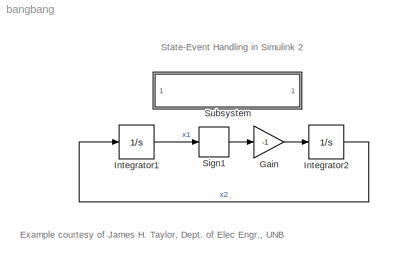
MODEL bangbang
KIND model
BLOCK [Gain] Gain
  Gain = -1
BLOCK [Integrator] Integrator1
  InitialCondition = 0.25
  Ports = [1, 1]
BLOCK [Integrator] Integrator2
  InitialCondition = 0.25
  Ports = [1, 1]
BLOCK [Signum] Sign1
BLOCK [SubSystem] Subsystem
  DeleteFcn = if ishandle(get_param(gcbh,'UserData')),delete(get_param(gcbh,'UserData'));end
  MaskDisplay = fprintf('Double-Click\\nto see a phase plane plot')
  MaskIconFrame = on
  MaskIconOpaque = on
  MaskIconRotate = none
  MaskIconUnits = autoscale
  MinAlgLoopOccurrences = off
  OpenFcn = if ~isempty(get_param(gcbh,'UserData')),if ishandle(get_param(gcbh,'UserData')),figure(get_param(gcbh,'UserData'));end;else,figure;end;[t,x]=sim(gcs);plot(x(:,1),x(:,2));shg;set_param(gcbh,'UserData',gcf)
  Ports = []
  PropExecContextAcrossSSBoundary = on
  RTWSystemCode = Auto
  TreatAsAtomicUnit = off
ANNOTATION (root): Example courtesy of James H. Taylor, Dept. of Elec Engr., UNB
ANNOTATION (root): State-Event Handling in Simulink 2
LINE Gain:1 -> Integrator2:1
LINE Integrator1:1 -> Sign1:1
LINE Integrator2:1 -> Integrator1:1
LINE Sign1:1 -> Gain:1
